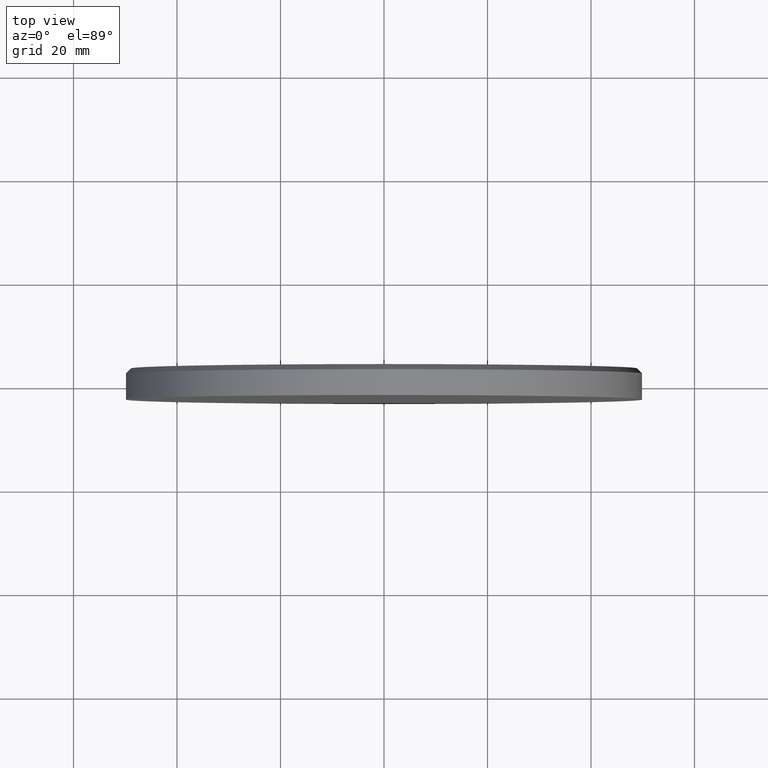
[diagram: clean part render]
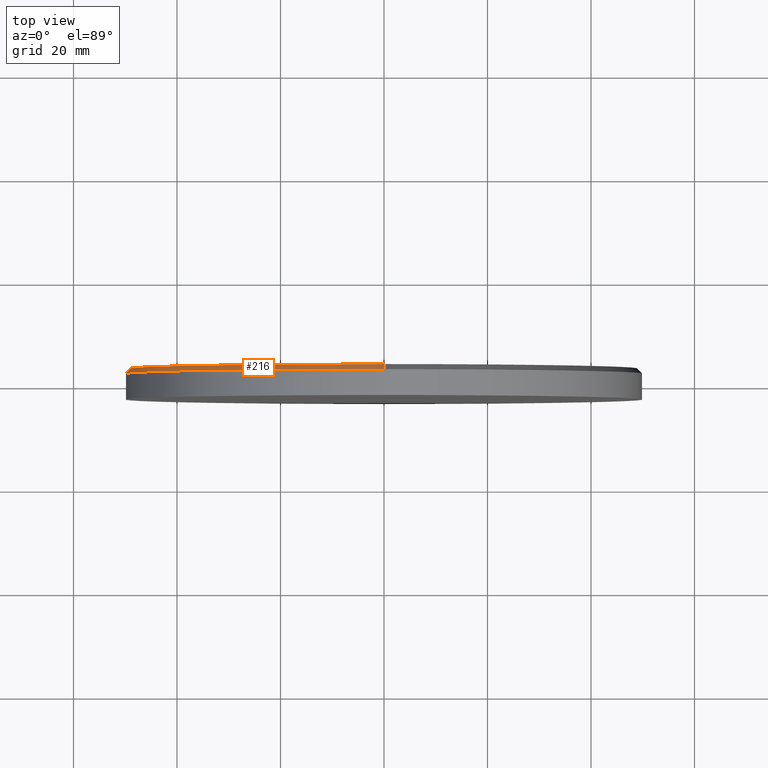
[diagram: same view with one face highlighted and labeled with its STEP entity id]
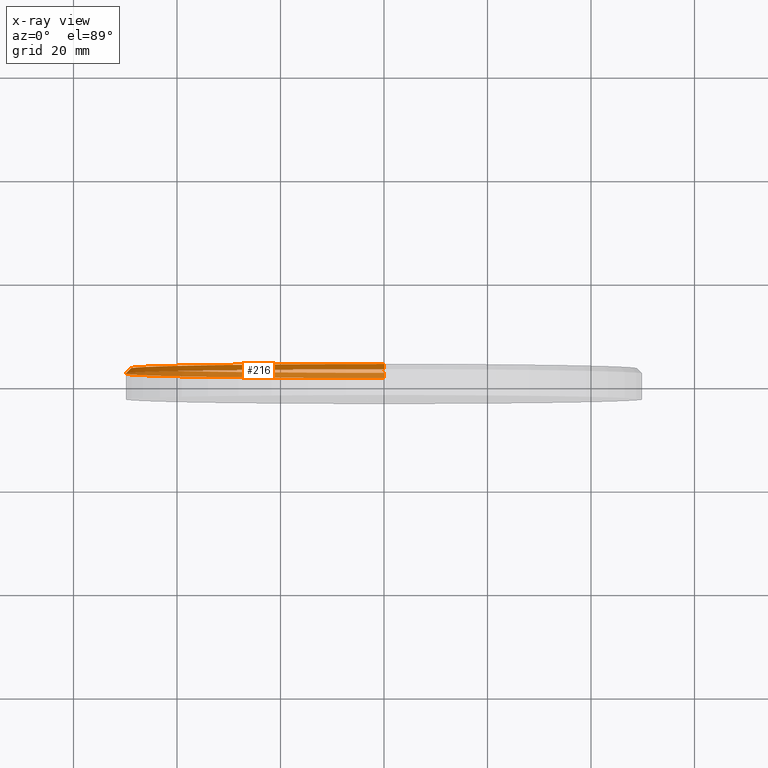
[diagram: x-ray of the same camera — body ghosted, the highlighted face saturated]
A machine part, top view. The second image highlights one B-rep face of the part: STEP entity #216.
The next image is the same camera in x-ray: the body ghosted, the highlighted face saturated — about 50% of this face is hidden behind the body in this view.
In plain terms, the highlighted conical surface has half-angle 45 deg.
Its self-contained STEP definition (entity closure, byte-faithful):
#216 = ADVANCED_FACE ( 'NONE', ( #3105 ), #5197, .T. ) ;
#435 = VERTEX_POINT ( 'NONE', #10457 ) ;
#1820 = AXIS2_PLACEMENT_3D ( 'NONE', #13074, #5365, #12081 ) ;
#2089 = AXIS2_PLACEMENT_3D ( 'NONE', #13612, #10096, #13524 ) ;
#2348 = DIRECTION ( 'NONE',  ( 0.000000000000000000, 0.000000000000000000, 1.000000000000000000 ) ) ;
#2839 = AXIS2_PLACEMENT_3D ( 'NONE', #5721, #8003, #2348 ) ;
#3105 = FACE_OUTER_BOUND ( 'NONE', #13030, .T. ) ;
#3115 = EDGE_CURVE ( 'NONE', #10334, #7557, #12923, .T. ) ;
#3118 = DIRECTION ( 'NONE',  ( 8.659560562354844111E-17, -0.7071067811865549002, 0.7071067811865401342 ) ) ;
#3470 = CARTESIAN_POINT ( 'NONE',  ( 0.000000000000000000, 3.000000000000000000, -49.00000000000002132 ) ) ;
#3566 = DIRECTION ( 'NONE',  ( 0.000000000000000000, -0.7071067811865549002, -0.7071067811865401342 ) ) ;
#4208 = CARTESIAN_POINT ( 'NONE',  ( 6.000769315822033304E-15, 3.000000000000000000, 49.00000000000002132 ) ) ;
#5013 = VECTOR ( 'NONE', #3566, 1000.000000000000000 ) ;
#5197 = CONICAL_SURFACE ( 'NONE', #1820, 49.00000000000002132, 0.7853981633974378429 ) ;
#5365 = DIRECTION ( 'NONE',  ( 0.000000000000000000, -1.000000000000000000, 0.000000000000000000 ) ) ;
#5721 = CARTESIAN_POINT ( 'NONE',  ( 0.000000000000000000, 1.999999999999999112, 0.000000000000000000 ) ) ;
#5833 = CIRCLE ( 'NONE', #2839, 50.00000000000000000 ) ;
#6625 = VERTEX_POINT ( 'NONE', #10129 ) ;
#6684 = EDGE_CURVE ( 'NONE', #6625, #435, #13900, .T. ) ;
#6826 = ORIENTED_EDGE ( 'NONE', *, *, #3115, .F. ) ;
#7340 = EDGE_CURVE ( 'NONE', #6625, #10334, #8490, .T. ) ;
#7557 = VERTEX_POINT ( 'NONE', #8666 ) ;
#7709 = ORIENTED_EDGE ( 'NONE', *, *, #6684, .T. ) ;
#8003 = DIRECTION ( 'NONE',  ( 0.000000000000000000, -1.000000000000000000, 0.000000000000000000 ) ) ;
#8490 = CIRCLE ( 'NONE', #2089, 49.00000000000002132 ) ;
#8666 = CARTESIAN_POINT ( 'NONE',  ( 6.123233995736766085E-15, 1.999999999999999112, 50.00000000000000000 ) ) ;
#9105 = ORIENTED_EDGE ( 'NONE', *, *, #7340, .F. ) ;
#10096 = DIRECTION ( 'NONE',  ( 0.000000000000000000, 1.000000000000000000, 0.000000000000000000 ) ) ;
#10129 = CARTESIAN_POINT ( 'NONE',  ( 0.000000000000000000, 3.000000000000000000, -49.00000000000002132 ) ) ;
#10334 = VERTEX_POINT ( 'NONE', #14426 ) ;
#10457 = CARTESIAN_POINT ( 'NONE',  ( 0.000000000000000000, 1.999999999999999112, -50.00000000000000000 ) ) ;
#11865 = VECTOR ( 'NONE', #3118, 1000.000000000000000 ) ;
#12081 = DIRECTION ( 'NONE',  ( 0.000000000000000000, 0.000000000000000000, -1.000000000000000000 ) ) ;
#12412 = EDGE_CURVE ( 'NONE', #7557, #435, #5833, .T. ) ;
#12923 = LINE ( 'NONE', #4208, #11865 ) ;
#13030 = EDGE_LOOP ( 'NONE', ( #6826, #9105, #7709, #14021 ) ) ;
#13074 = CARTESIAN_POINT ( 'NONE',  ( 0.000000000000000000, 3.000000000000000000, 0.000000000000000000 ) ) ;
#13524 = DIRECTION ( 'NONE',  ( 0.000000000000000000, 0.000000000000000000, 1.000000000000000000 ) ) ;
#13612 = CARTESIAN_POINT ( 'NONE',  ( 0.000000000000000000, 3.000000000000000000, 0.000000000000000000 ) ) ;
#13900 = LINE ( 'NONE', #3470, #5013 ) ;
#14021 = ORIENTED_EDGE ( 'NONE', *, *, #12412, .F. ) ;
#14426 = CARTESIAN_POINT ( 'NONE',  ( 6.062001655779400089E-15, 3.000000000000000000, 49.00000000000002132 ) ) ;